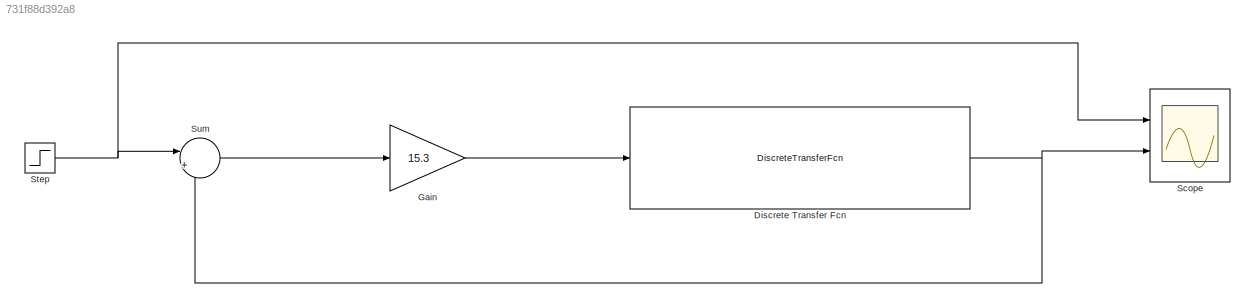
MODEL slx_731f88d392a8
KIND model
CONFIG AbsTol = auto
CONFIG EnableMultiTasking = off
CONFIG FixedStep = auto
CONFIG MaxStep = auto
CONFIG MinStep = auto
CONFIG RelTol = 1e-3
CONFIG SampleTimeConstraint = Unconstrained
CONFIG SolverName = VariableStepAuto
CONFIG StartTime = 0.0
CONFIG StopTime = 40
BLOCK [DiscreteTransferFcn] Discrete Transfer Fcn
  Denominator = [1 -1.854 1.08 -0.2159 0.01128]
  InputPortMap = u0
  Numerator = [0.001731 0.005194 0.005194 0.001731]
  Ports = [1, 1]
  SampleTime = 0.5
BLOCK [Gain] Gain
  Gain = 15.3
BLOCK [Scope] Scope
  Floating = off
  NumInputPorts = 2
  Ports = [2]
  ScopeSpecificationString = Simulink.scopes.TimeScopeBlockCfg('CurrentConfiguration', extmgr.ConfigurationSet(extmgr.Configuration('Core','General UI',true),extmgr.Configuration('Core','Source UI',true),extmgr.Configuration('Sources','WiredSimulink',true),extmgr.Configuration('Visuals','Time Domain',true,'SerializedDisplays',{struct('MinYLimReal','-0.21969','MaxYLimReal','1.97723','YLabelReal','','MinYLimMag','0.00000','MaxY...<+1377ch>
BLOCK [Step] Step
  SampleTime = 0
BLOCK [Sum] Sum
  Inputs = |+-
  Ports = [2, 1]
NET Discrete Transfer Fcn:1 -> Scope:2, Sum:2
LINE Gain:1 -> Discrete Transfer Fcn:1
NET Step:1 -> Scope:1, Sum:1
LINE Sum:1 -> Gain:1
note: NET lines group one-source signal fan-out (src -> all destinations, sorted); 1:1 wires keep LINE
